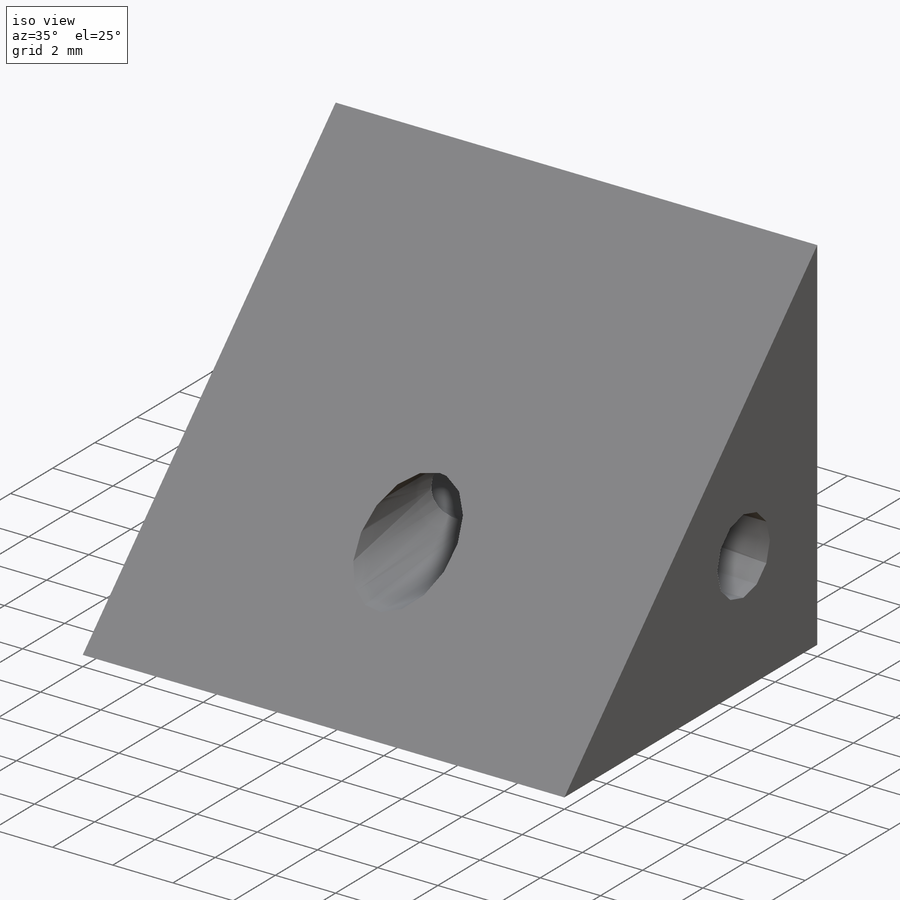
[diagram: iso view]
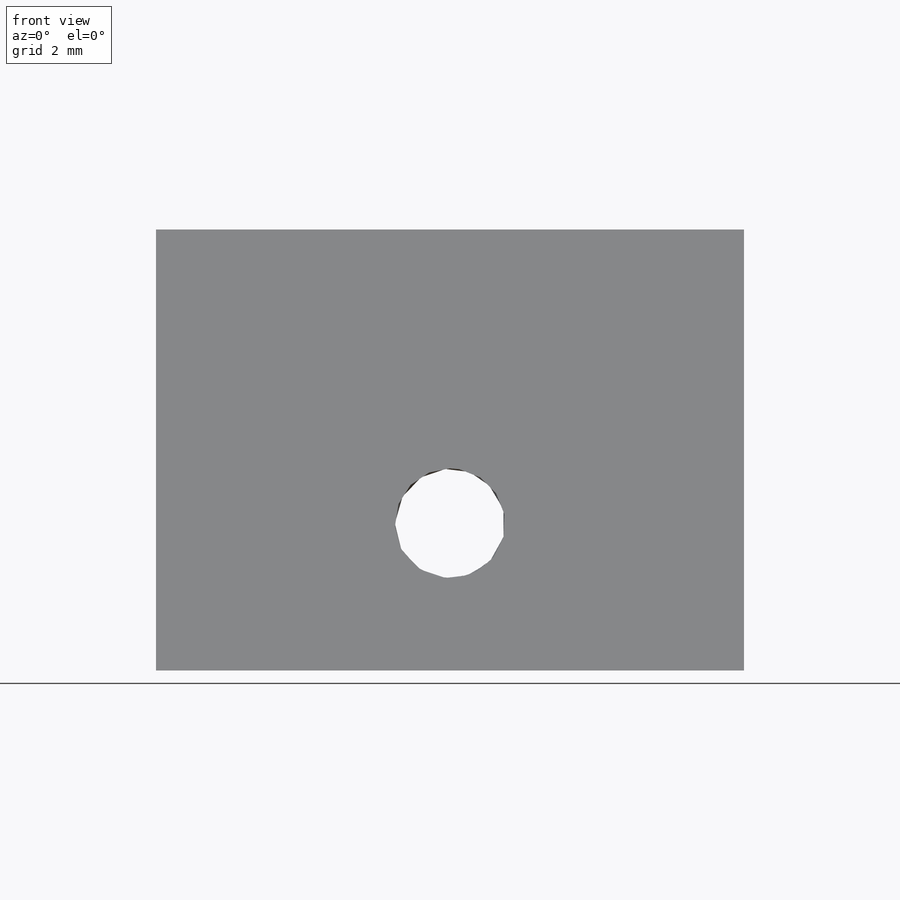
[diagram: front view]
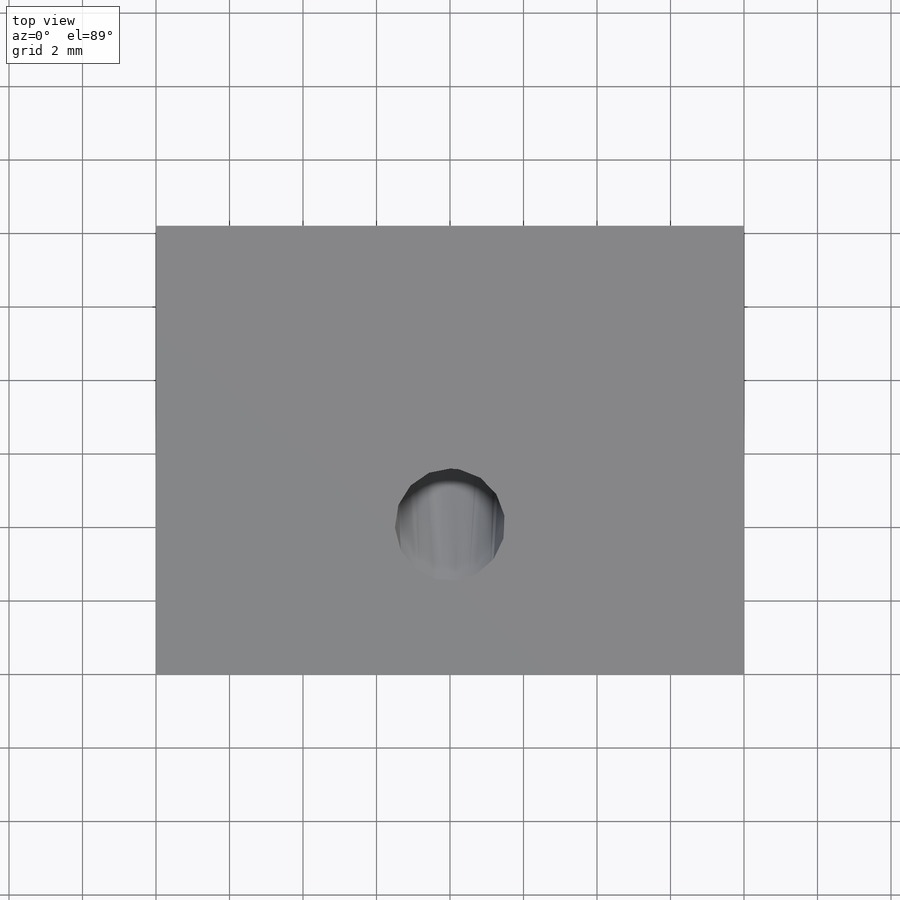
[diagram: top view]
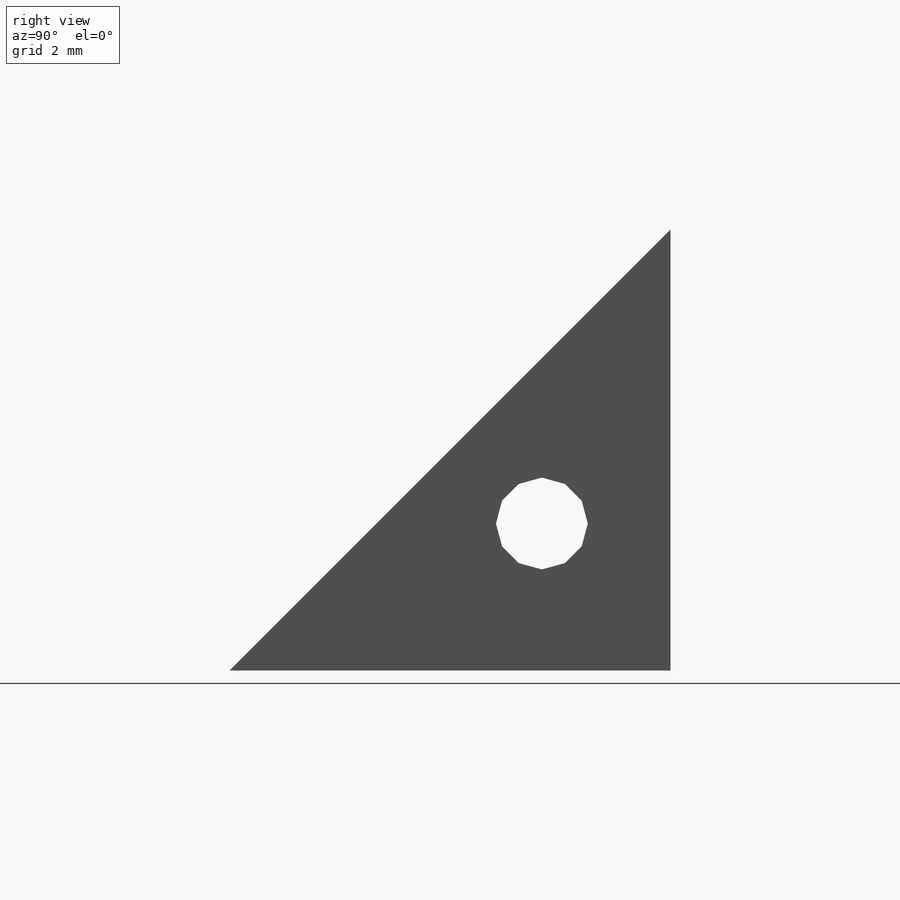
[diagram: right view]
SOLIDWORKS PART (.sldprt)
format: sldprt  version: not decoded by parser v0  size: 178,176 bytes
history: native  units: mm
features: sketch x5, plane x3, cut_extrude x2, material x1, extrude x1, chamfer x1, hole x1, thread x1 (+9 scaffold rows collapsed)
feature tree (24):
  scaffold x9  (default folders/planes/origin — collapsed)
  material  "Matériau <non spécifié>"
  plane  "Face"
  plane  "Dessus"
  plane  "Droite"
  sketch  "Esquisse1"  dims[D1=12.0mm D2=16.0mm]
  extrude  "Extrusion1"  Depth=14mm
  chamfer  "Chanfrein1"  Distance=14mm Angle=45deg
  sketch  "Esquisse2"  dims[D1=2.0mm D2=7.0mm D3=7.0mm]
  cut_extrude  "Enlèv. mat.-Extru.1"  [1 undecoded]
  sketch  "Esquisse3"  dims[D1=3.0mm D2=8.0mm D3=4.0mm D4=8.0mm]
  cut_extrude  "Enlèv. mat.-Extru.2"  [1 undecoded]
  hole  "Trou taraudé M3x0.51"  Diameter=2.5mm Depth=16mm
  sketch  "Esquisse5"  dims[D1=4.0mm D2=3.5mm]
  sketch  "Esquisse6"  dims[hole-wizard template sketch: 60 standard entries collapsed; hole parameters kept: c18.Profondeur du trou pour taraudage jusqu'au prochain=16.0mm]
  thread  "Filetage de perçage1"  [2 undecoded]
decode coverage: 8 of 11 modeling features carry decoded parameters
note: ~ marks probable driven/reference dimensions
note: 4 parameter values undecoded
summary: no parameter record found for 3 features
note: suppression state not decoded; provenance and decode notes live in map.json
